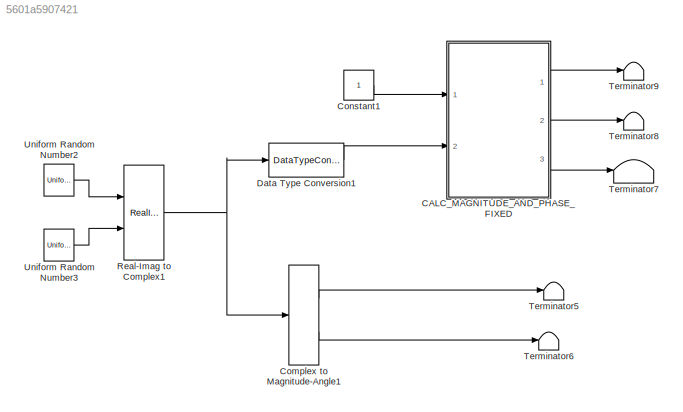
MODEL slx_5601a5907421
KIND model
CONFIG AbsTol = auto
CONFIG EnableMultiTasking = off
CONFIG FixedStep = auto
CONFIG MaxStep = auto
CONFIG MinStep = auto
CONFIG RelTol = 1e-3
CONFIG SampleTimeConstraint = Unconstrained
CONFIG SolverName = VariableStepAuto
CONFIG StartTime = 0.0
CONFIG StopTime = 10.0
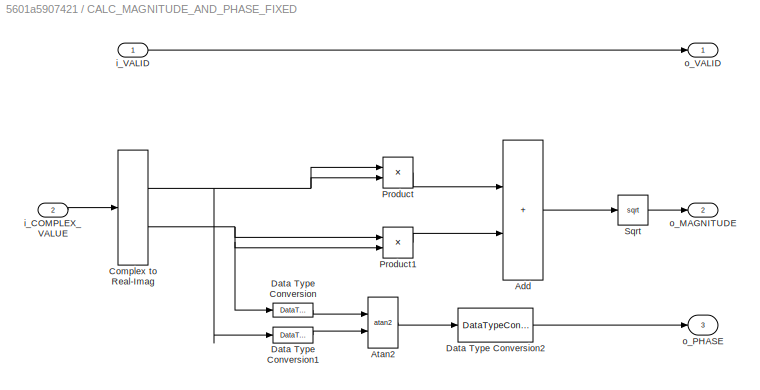
BLOCK [SubSystem] CALC_MAGNITUDE_AND_PHASE_FIXED
  Ports = [2, 3]
  RequestExecContextInheritance = off
BLOCK [Sum] CALC_MAGNITUDE_AND_PHASE_FIXED/Add
  IconShape = rectangular
  OutDataTypeStr = fixdt(1,65,36)
  Ports = [2, 1]
BLOCK [Trigonometry] CALC_MAGNITUDE_AND_PHASE_FIXED/Atan2
  ApproximationMethod = CORDIC
  NumberOfIterations = 20
  Operator = atan2
  Ports = [2, 1]
BLOCK [ComplexToRealImag] CALC_MAGNITUDE_AND_PHASE_FIXED/Complex to Real-Imag
  Ports = [1, 2]
BLOCK [DataTypeConversion] CALC_MAGNITUDE_AND_PHASE_FIXED/Data Type Conversion
  OutDataTypeStr = fixdt(0,32,31)
  RndMeth = Floor
  SaturateOnIntegerOverflow = off
BLOCK [DataTypeConversion] CALC_MAGNITUDE_AND_PHASE_FIXED/Data Type Conversion1
  OutDataTypeStr = fixdt(0,32,31)
  RndMeth = Floor
  SaturateOnIntegerOverflow = off
BLOCK [DataTypeConversion] CALC_MAGNITUDE_AND_PHASE_FIXED/Data Type Conversion2
  OutDataTypeStr = fixdt(1,16,0)
  RndMeth = Floor
  SaturateOnIntegerOverflow = off
BLOCK [Product] CALC_MAGNITUDE_AND_PHASE_FIXED/Product
  Ports = [2, 1]
  SaturateOnIntegerOverflow = on
BLOCK [Product] CALC_MAGNITUDE_AND_PHASE_FIXED/Product1
  LockScale = on
  Ports = [2, 1]
BLOCK [Sqrt] CALC_MAGNITUDE_AND_PHASE_FIXED/Sqrt
  OutDataTypeStr = fixdt(1,33,31)
BLOCK [Inport] CALC_MAGNITUDE_AND_PHASE_FIXED/i_COMPLEX_VALUE
  Port = 2
BLOCK [Inport] CALC_MAGNITUDE_AND_PHASE_FIXED/i_VALID
  OutDataTypeStr = boolean
BLOCK [Outport] CALC_MAGNITUDE_AND_PHASE_FIXED/o_MAGNITUDE
  Port = 2
BLOCK [Outport] CALC_MAGNITUDE_AND_PHASE_FIXED/o_PHASE
  Port = 3
BLOCK [Outport] CALC_MAGNITUDE_AND_PHASE_FIXED/o_VALID
  OutDataTypeStr = boolean
BLOCK [ComplexToMagnitudeAngle] Complex to Magnitude-Angle1
  Ports = [1, 2]
BLOCK [Constant] Constant1
  OutDataTypeStr = boolean
  SampleTime = 1
BLOCK [DataTypeConversion] Data Type Conversion1
  OutDataTypeStr = fixdt(1,32,31)
  RndMeth = Round
  SaturateOnIntegerOverflow = off
BLOCK [RealImagToComplex] Real-Imag to Complex1
  Ports = [2, 1]
BLOCK [Terminator] Terminator5
BLOCK [Terminator] Terminator6
BLOCK [Terminator] Terminator7
BLOCK [Terminator] Terminator8
BLOCK [Terminator] Terminator9
BLOCK [UniformRandomNumber] Uniform Random Number2
  Maximum = 1.99999999953433871269
  Minimum = 0
  SampleTime = 1
  Seed = 1
BLOCK [UniformRandomNumber] Uniform Random Number3
  Maximum = 1.99999999953433871269
  Minimum = 0
  SampleTime = 1
  Seed = 2
LINE CALC_MAGNITUDE_AND_PHASE_FIXED/Add:1 -> CALC_MAGNITUDE_AND_PHASE_FIXED/Sqrt:1
LINE CALC_MAGNITUDE_AND_PHASE_FIXED/Atan2:1 -> CALC_MAGNITUDE_AND_PHASE_FIXED/Data Type Conversion2:1
NET CALC_MAGNITUDE_AND_PHASE_FIXED/Complex to Real-Imag:1 -> CALC_MAGNITUDE_AND_PHASE_FIXED/Data Type Conversion1:1, CALC_MAGNITUDE_AND_PHASE_FIXED/Product:1, CALC_MAGNITUDE_AND_PHASE_FIXED/Product:2
NET CALC_MAGNITUDE_AND_PHASE_FIXED/Complex to Real-Imag:2 -> CALC_MAGNITUDE_AND_PHASE_FIXED/Data Type Conversion:1, CALC_MAGNITUDE_AND_PHASE_FIXED/Product1:1, CALC_MAGNITUDE_AND_PHASE_FIXED/Product1:2
LINE CALC_MAGNITUDE_AND_PHASE_FIXED/Data Type Conversion1:1 -> CALC_MAGNITUDE_AND_PHASE_FIXED/Atan2:2
LINE CALC_MAGNITUDE_AND_PHASE_FIXED/Data Type Conversion2:1 -> CALC_MAGNITUDE_AND_PHASE_FIXED/o_PHASE:1
LINE CALC_MAGNITUDE_AND_PHASE_FIXED/Data Type Conversion:1 -> CALC_MAGNITUDE_AND_PHASE_FIXED/Atan2:1
LINE CALC_MAGNITUDE_AND_PHASE_FIXED/Product1:1 -> CALC_MAGNITUDE_AND_PHASE_FIXED/Add:2
LINE CALC_MAGNITUDE_AND_PHASE_FIXED/Product:1 -> CALC_MAGNITUDE_AND_PHASE_FIXED/Add:1
LINE CALC_MAGNITUDE_AND_PHASE_FIXED/Sqrt:1 -> CALC_MAGNITUDE_AND_PHASE_FIXED/o_MAGNITUDE:1
LINE CALC_MAGNITUDE_AND_PHASE_FIXED/i_COMPLEX_VALUE:1 -> CALC_MAGNITUDE_AND_PHASE_FIXED/Complex to Real-Imag:1
LINE CALC_MAGNITUDE_AND_PHASE_FIXED/i_VALID:1 -> CALC_MAGNITUDE_AND_PHASE_FIXED/o_VALID:1
LINE CALC_MAGNITUDE_AND_PHASE_FIXED:1 -> Terminator9:1
LINE CALC_MAGNITUDE_AND_PHASE_FIXED:2 -> Terminator8:1
LINE CALC_MAGNITUDE_AND_PHASE_FIXED:3 -> Terminator7:1
LINE Complex to Magnitude-Angle1:1 -> Terminator5:1
LINE Complex to Magnitude-Angle1:2 -> Terminator6:1
LINE Constant1:1 -> CALC_MAGNITUDE_AND_PHASE_FIXED:1
LINE Data Type Conversion1:1 -> CALC_MAGNITUDE_AND_PHASE_FIXED:2
NET Real-Imag to Complex1:1 -> Complex to Magnitude-Angle1:1, Data Type Conversion1:1
LINE Uniform Random Number2:1 -> Real-Imag to Complex1:1
LINE Uniform Random Number3:1 -> Real-Imag to Complex1:2
note: NET lines group one-source signal fan-out (src -> all destinations, sorted); 1:1 wires keep LINE
